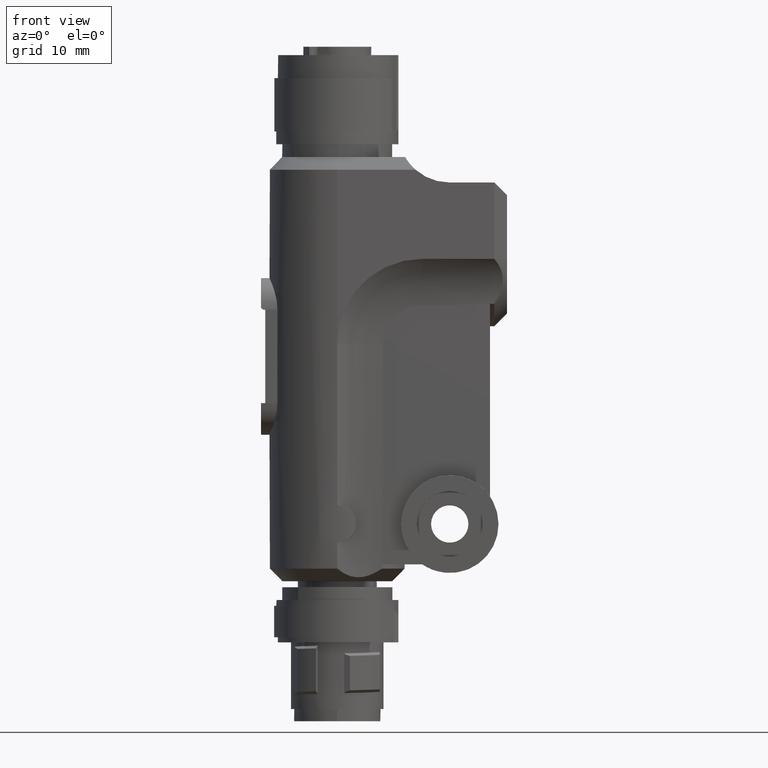
[diagram: clean part render]
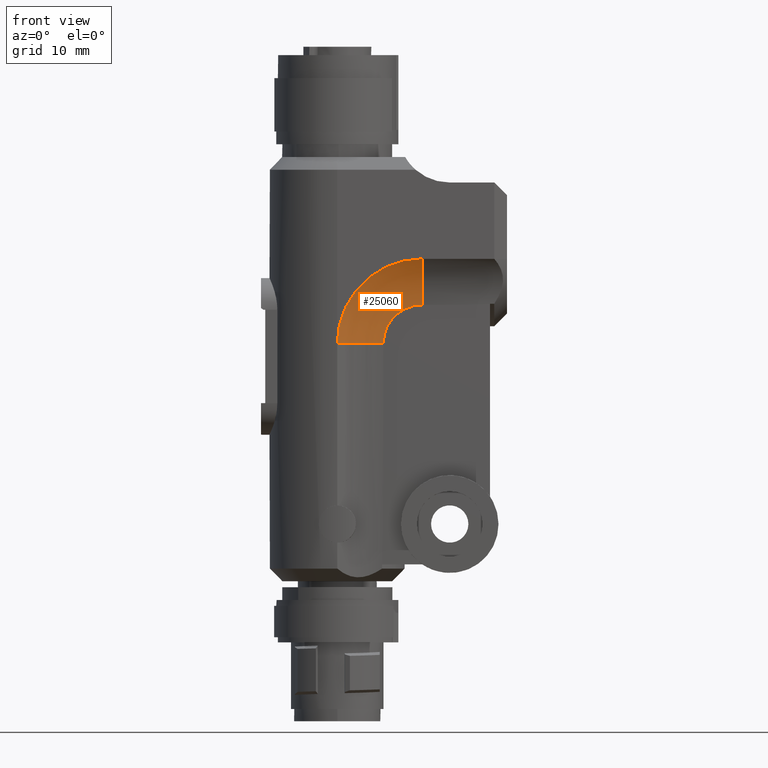
[diagram: same view with one face highlighted and labeled with its STEP entity id]
A machine part, front view. The second image highlights one B-rep face of the part: STEP entity #25060.
In plain terms, the highlighted toroidal blend (fillet) surface has major radius 4.7085 mm and minor (blend) radius 8 mm.
Its self-contained STEP definition (entity closure, byte-faithful):
#4920=CARTESIAN_POINT('',(8.,1.95399252334028E-14,28.0000000000002));
#4930=VERTEX_POINT('',#4920);
#19370=CARTESIAN_POINT('',(6.001,9.99979125739767,32.5820102196181));
#19380=VERTEX_POINT('',#19370);
#19500=CARTESIAN_POINT('',(6.001,5.41798977562713,28.));
#19510=VERTEX_POINT('',#19500);
#19540=CARTESIAN_POINT('',(6.001,10.,28.));
#19550=DIRECTION('',(1.,4.93038065763133E-31,2.52970265222012E-16));
#19560=DIRECTION('',(6.89181434628495E-31,-1.,-7.75361359933837E-16));
#19570=AXIS2_PLACEMENT_3D('',#19540,#19550,#19560);
#19580=CIRCLE('',#19570,4.58201022437288);
#19590=EDGE_CURVE('',#19380,#19510,#19580,.T.);
#23660=CARTESIAN_POINT('',(8.,10.0002770649337,38.));
#23670=VERTEX_POINT('',#23660);
#23750=CARTESIAN_POINT('',(6.00100000003759,9.99979125739745,
32.5820102196187));
#23760=CARTESIAN_POINT('',(5.99905382173869,9.99982995645565,
32.705085804937));
#23770=CARTESIAN_POINT('',(5.99994867765351,9.99987293733984,
32.828206304562));
#23780=CARTESIAN_POINT('',(6.00741855247489,9.9999416893582,
33.0742748950549));
#23790=CARTESIAN_POINT('',(6.0139935706501,9.99998031360968,
33.197222964229));
#23800=CARTESIAN_POINT('',(6.03280976489689,10.0000145668233,
33.4426847832188));
#23810=CARTESIAN_POINT('',(6.04505093951465,10.0000034832919,
33.5651985123745));
#23820=CARTESIAN_POINT('',(6.07517336984668,10.000003164731,
33.8095306520644));
#23830=CARTESIAN_POINT('',(6.09305462338901,9.99998784022165,
33.9313490451102));
#23840=CARTESIAN_POINT('',(6.13441911989041,10.0000051295244,
34.1740310031544));
#23850=CARTESIAN_POINT('',(6.15790235980249,10.0000031307206,
34.2948945507291));
#23860=CARTESIAN_POINT('',(6.21042080415018,10.0000033600064,
34.535409346209));
#23870=CARTESIAN_POINT('',(6.23945600463287,9.99999708341326,
34.6550605760345));
#23880=CARTESIAN_POINT('',(6.30301651773078,9.99999726155898,
34.8928958447571));
#23890=CARTESIAN_POINT('',(6.33754182550243,9.99998959980582,
35.0110798655396));
#23900=CARTESIAN_POINT('',(6.4120090052059,9.99998972643202,
35.2457289501405));
#23910=CARTESIAN_POINT('',(6.45195087156336,9.99998719750533,
35.362193996363));
#23920=CARTESIAN_POINT('',(6.53716607528146,10.0000079069529,
35.5931570105143));
#23930=CARTESIAN_POINT('',(6.58243940593027,10.0000054660543,
35.7076549625138));
#23940=CARTESIAN_POINT('',(6.67822109873548,10.0000060291648,
35.9344398921221));
#23950=CARTESIAN_POINT('',(6.72872945371148,9.99999868759005,
36.0467268527483));
#23960=CARTESIAN_POINT('',(6.83487359889803,9.99999979433313,
36.2688505963713));
#23970=CARTESIAN_POINT('',(6.89050938103589,9.99999251853106,
36.3786873624767));
#23980=CARTESIAN_POINT('',(7.00678986114148,9.999994166549,
36.5956767328744));
#23990=CARTESIAN_POINT('',(7.06743455043353,9.99999247046112,
36.7028293209606));
#24000=CARTESIAN_POINT('',(7.19360365580004,10.000015896059,
36.9142220705251));
#24010=CARTESIAN_POINT('',(7.25912806331595,9.99999579385313,
37.0184622174198));
#24020=CARTESIAN_POINT('',(7.39491701910121,9.99999569915178,
37.2238080205846));
#24030=CARTESIAN_POINT('',(7.46518155811158,9.99998112678352,
37.3249136628141));
#24040=CARTESIAN_POINT('',(7.61030109603004,10.0000266717316,
37.5237750752719));
#24050=CARTESIAN_POINT('',(7.68515609385633,9.99995834020489,
37.6215308426702));
#24060=CARTESIAN_POINT('',(7.83929706275127,10.0000494277808,
37.8134842244057));
#24070=CARTESIAN_POINT('',(7.91858299901242,10.0001859722753,
37.9076817990195));
#24080=CARTESIAN_POINT('',(8.00000000095203,10.0002770649338,
37.9999999991604));
#24090=B_SPLINE_CURVE_WITH_KNOTS('',3,(#23750,#23760,#23770,#23780,
#23790,#23800,#23810,#23820,#23830,#23840,#23850,#23860,#23870,#23880,
#23890,#23900,#23910,#23920,#23930,#23940,#23950,#23960,#23970,#23980,
#23990,#24000,#24010,#24020,#24030,#24040,#24050,#24060,#24070,#24080),
.UNSPECIFIED.,.F.,.F.,(4,2,2,2,2,2,2,2,2,2,2,2,2,2,2,2,4),(0.,
0.360937443132483,0.721874886264965,1.08281232939745,1.44374977252993,
1.80468721566241,2.1656246587949,2.52656210192738,2.88749954505986,
3.24843698819234,3.60937443132483,3.97031187445731,4.33124931758979,
4.69218676072227,5.05312420385476,5.41406164698724,5.77499909011972),
.UNSPECIFIED.);
#24100=EDGE_CURVE('',#19380,#23670,#24090,.T.);
#24830=CARTESIAN_POINT('',(14.,10.,28.));
#24840=DIRECTION('',(1.,4.93038065763133E-31,2.52970265222012E-16));
#24850=DIRECTION('',(7.13845243878985E-31,-1.,-8.38662567217461E-16));
#24860=AXIS2_PLACEMENT_3D('',#24830,#24840,#24850);
#24870=DEGENERATE_TOROIDAL_SURFACE('',#24860,4.70849737787081,8.,.T.);
#24880=CARTESIAN_POINT('',(8.,10.,28.));
#24890=DIRECTION('',(1.,4.93038065763133E-31,2.52970265222012E-16));
#24900=DIRECTION('',(7.62657342238343E-31,-1.,-1.06581410364015E-15));
#24910=AXIS2_PLACEMENT_3D('',#24880,#24890,#24900);
#24920=CIRCLE('',#24910,9.99999999999999);
#24930=EDGE_CURVE('',#23670,#4930,#24920,.T.);
#24940=ORIENTED_EDGE('',*,*,#24930,.T.);
#24950=ORIENTED_EDGE('',*,*,#24100,.T.);
#24960=ORIENTED_EDGE('',*,*,#19590,.F.);
#24970=CARTESIAN_POINT('',(14.,5.2915026221292,28.));
#24980=DIRECTION('',(2.52970265222012E-16,0.,-1.));
#24990=DIRECTION('',(4.93038065763133E-31,-1.,1.24723970260648E-46));
#25000=AXIS2_PLACEMENT_3D('',#24970,#24980,#24990);
#25010=CIRCLE('',#25000,8.);
#25020=EDGE_CURVE('',#4930,#19510,#25010,.T.);
#25030=ORIENTED_EDGE('',*,*,#25020,.T.);
#25040=EDGE_LOOP('',(#25030,#24960,#24950,#24940));
#25050=FACE_OUTER_BOUND('',#25040,.T.);
#25060=ADVANCED_FACE('',(#25050),#24870,.F.);